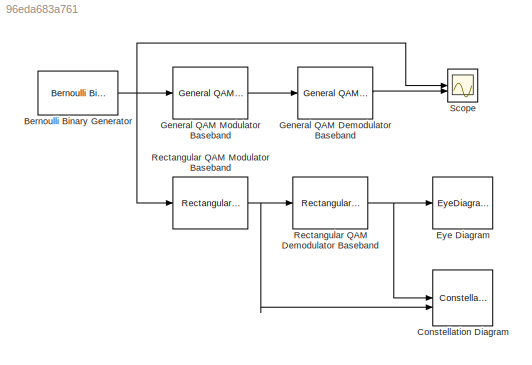
MODEL slx_96eda683a761
KIND model
CONFIG AbsTol = auto
CONFIG EnableMultiTasking = off
CONFIG FixedStep = auto
CONFIG MaxStep = auto
CONFIG MinStep = auto
CONFIG RelTol = 1e-3
CONFIG SampleTimeConstraint = Unconstrained
CONFIG SolverName = VariableStepAuto
CONFIG StartTime = 0.0
CONFIG StopTime = inf
BLOCK [Reference] Bernoulli Binary Generator  REF=commrandsrc3/Bernoulli Binary
Generator
  SourceBlock = commrandsrc3/Bernoulli Binary\nGenerator
  SourceType = Bernoulli Binary Generator
BLOCK [ConstellationDiagram] Constellation Diagram
  GraphicalSettings = {"Style":{"BackgroundColor":[0.12941176470588237,0.12941176470588237,0.12941176470588237],"AxesColor":[0.07058823529411765,0.07058823529411765,0.07058823529411765],"LabelsColor":[0.8509803921568627,0.8509803921568627,0.8509803921568627],"PreserveColors":false,"LineStyle":["-","-","NONE","NONE"],"LineWidth":[1,1,1,1],"LineColor":[[1,0.9098039215686274,0.39215686274509803],[0.14901960784313725,0.549...<+2811ch>
  NumInputPorts = 2
  ReferenceConstellation = {[-1.0801+1.0801i         -1.0801+0.77152i         -1.0801+0.46291i          -1.0801+0.1543i          -1.0801-0.1543i         -1.0801-0.46291i         -1.0801-0.77152i          -1.0801-1.0801i         -0.77152+1.0801i        -0.77152+0.77152i        -0.77152+0.46291i         -0.77152+0.1543i         -0.77152-0.1543i        -0.77152-0.46291i        -0.77152-0.77152i         -0.77152-1.0801i        ...<+2786ch>
  ScopeFrameLocation = window
  ShowLegend = on
  ShowTrajectory = on
  SymbolsToDisplay = 8
  WasSavedAsWebScope = on
  WindowPosition = [36.000000,127.000000,600.000000,600.000000,]
BLOCK [EyeDiagramBlock] Eye Diagram
  GraphicalSettings = {"GraphicalSettings":{"Style":{"BackgroundColor":[0.12941176470588237,0.12941176470588237,0.12941176470588237],"AxesColor":[0.07058823529411765,0.07058823529411765,0.07058823529411765],"LabelsColor":[0.8509803921568627,0.8509803921568627,0.8509803921568627],"PreserveColors":false,"Visible":[true],"LineStyle":["-"],"LineWidth":[1.5],"LineColor":[[1,0.9098039215686274,0.39215686274509803]],"Marker":...<+26ch>
  ScopeFrameLocation = window
  WasSavedAsWebScope = on
  WindowPosition = [666.000000,186.000000,800.000000,500.000000,]
  YLimits = [-1.1,1.125]
BLOCK [Reference] General QAM Demodulator Baseband  REF=commdigbbndam3/General QAM
Demodulator
Baseband
  SourceBlock = commdigbbndam3/General QAM\nDemodulator\nBaseband
  SourceType = General QAM Demodulator Baseband
BLOCK [Reference] General QAM Modulator Baseband  REF=commdigbbndam3/General QAM
Modulator
Baseband
  SourceBlock = commdigbbndam3/General QAM\nModulator\nBaseband
  SourceType = General QAM Modulator Baseband
BLOCK [Reference] Rectangular QAM Demodulator Baseband  REF=commdigbbndam3/Rectangular QAM
Demodulator
Baseband
  SourceBlock = commdigbbndam3/Rectangular QAM\nDemodulator\nBaseband
  SourceType = Rectangular QAM Demodulator Baseband
BLOCK [Reference] Rectangular QAM Modulator Baseband  REF=commdigbbndam3/Rectangular QAM
Modulator
Baseband
  SourceBlock = commdigbbndam3/Rectangular QAM\nModulator\nBaseband
  SourceType = Rectangular QAM Modulator Baseband
BLOCK [Scope] Scope
  ActiveDisplayYMaximum = 1
  ActiveDisplayYMinimum = -1
  Floating = off
  GraphicalSettings = {"Style":{"BackgroundColor":[0.12941176470588237,0.12941176470588237,0.12941176470588237],"AxesColor":[0.07058823529411765,0.07058823529411765,0.07058823529411765],"LabelsColor":[0.8509803921568627,0.8509803921568627,0.8509803921568627],"PreserveColors":false,"Visible":[true,true],"LineStyle":["-","-"],"LineWidth":[1.5,1.5],"BarWidth":[0.9,0.9],"LineColor":["auto","auto"],"LineFaceAlpha":[1,1],"Li...<+2393ch>
  LayoutDimensionsString = [2, 1]
  MultipleDisplayCache = [{"MaxYLimMag":1,"MaxYLimReal":1,"MinYLimMag":0,"MinYLimReal":-1,"PlotAsMagnitudePhase":false,"ShowGrid":true,"ShowLegend":false,"Title":"%<SignalLabel>","YLabel":""},{"MaxYLimMag":1,"MaxYLimReal":1,"MinYLimMag":0,"MinYLimReal":-1,"PlotAsMagnitudePhase":false,"ShowGrid":true,"ShowLegend":false,"Title":"%<SignalLabel>","YLabel":""}]
  NumInputPorts = 2
  ScopeFrameLocation = window
  WasSavedAsWebScope = on
  WindowPosition = [488.000000,222.000000,560.000000,420.000000,]
NET Bernoulli Binary Generator:1 -> General QAM Modulator Baseband:1, Rectangular QAM Modulator Baseband:1, Scope:1
LINE General QAM Demodulator Baseband:1 -> Scope:2
LINE General QAM Modulator Baseband:1 -> General QAM Demodulator Baseband:1
NET Rectangular QAM Demodulator Baseband:1 -> Constellation Diagram:1, Eye Diagram:1
NET Rectangular QAM Modulator Baseband:1 -> Constellation Diagram:2, Rectangular QAM Demodulator Baseband:1
note: NET lines group one-source signal fan-out (src -> all destinations, sorted); 1:1 wires keep LINE
